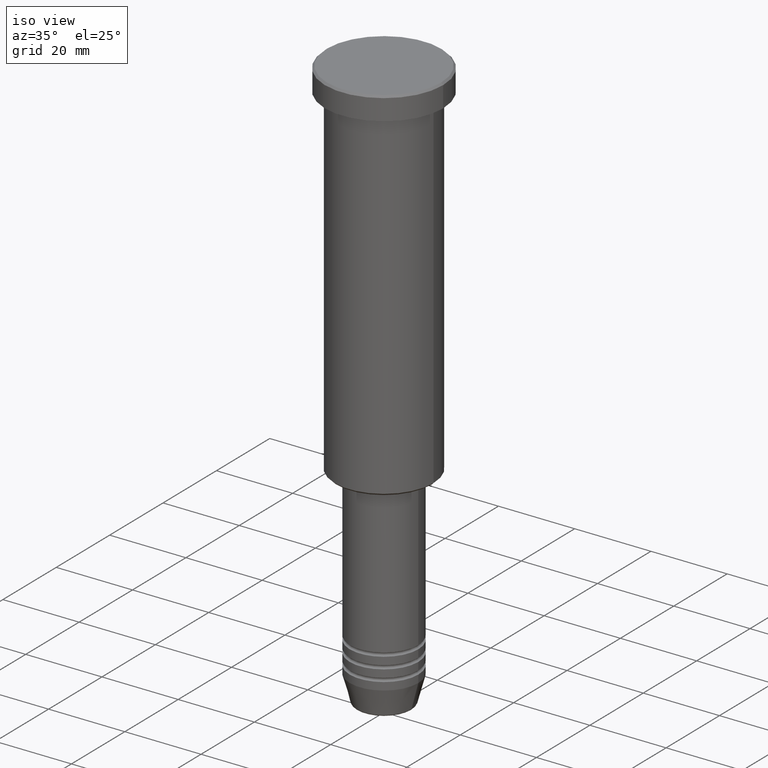
[diagram: clean part render]
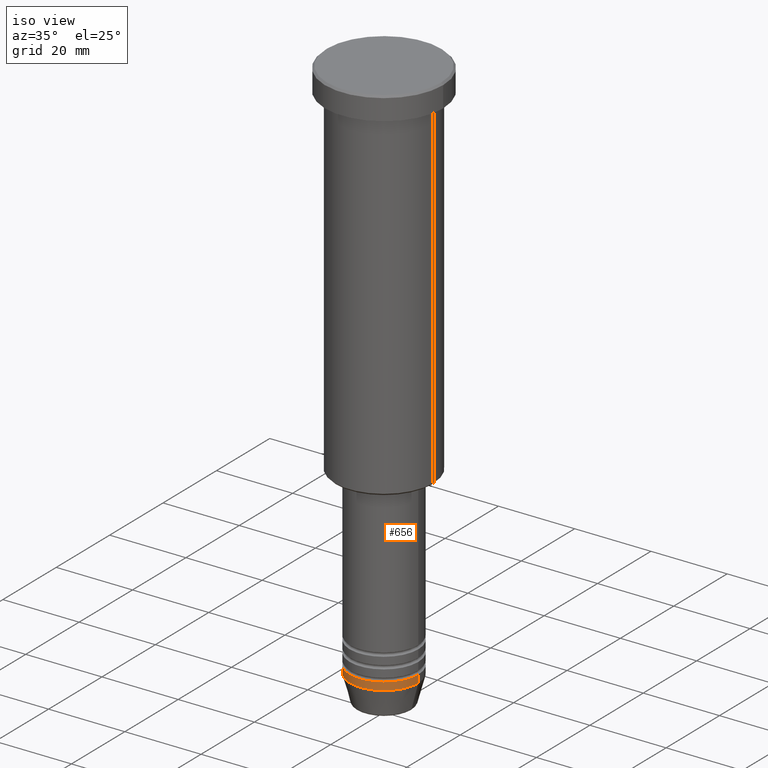
[diagram: same view with one face highlighted and labeled with its STEP entity id]
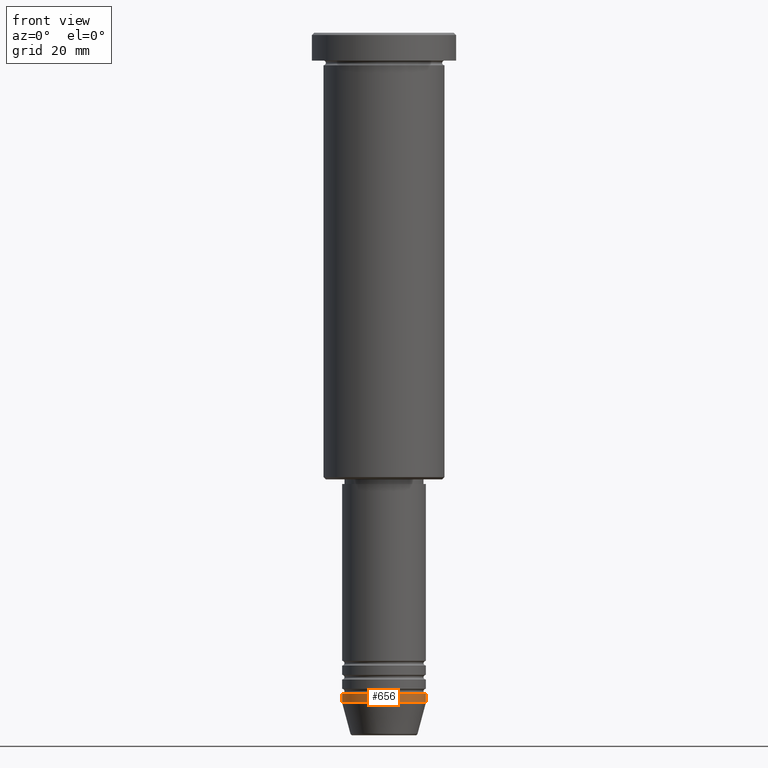
[diagram: same view with one face highlighted and labeled with its STEP entity id]
A machine part, iso view. The second image highlights one B-rep face of the part: STEP entity #656.
A second angle (front view) of the same face is appended — the face is thin or edge-on in the first view.
In plain terms, the highlighted cylindrical surface (partial cylindrical patch) has radius 9 mm, axis along (-0, -0, 1).
Its self-contained STEP definition (entity closure, byte-faithful):
#41 = EDGE_CURVE ( 'NONE', #159, #84, #868, .T. ) ;
#65 = AXIS2_PLACEMENT_3D ( 'NONE', #216, #776, #849 ) ;
#80 = DIRECTION ( 'NONE',  ( 1.000000000000000000, 0.000000000000000000, 0.000000000000000000 ) ) ;
#84 = VERTEX_POINT ( 'NONE', #919 ) ;
#98 = DIRECTION ( 'NONE',  ( -0.000000000000000000, -0.000000000000000000, 1.000000000000000000 ) ) ;
#118 = CARTESIAN_POINT ( 'NONE',  ( 9.000000000000000000, 0.000000000000000000, -144.0000000000000284 ) ) ;
#159 = VERTEX_POINT ( 'NONE', #307 ) ;
#166 = EDGE_CURVE ( 'NONE', #880, #246, #536, .T. ) ;
#216 = CARTESIAN_POINT ( 'NONE',  ( 0.000000000000000000, 0.000000000000000000, -144.0000000000000284 ) ) ;
#232 = DIRECTION ( 'NONE',  ( -0.000000000000000000, -0.000000000000000000, 1.000000000000000000 ) ) ;
#246 = VERTEX_POINT ( 'NONE', #118 ) ;
#282 = LINE ( 'NONE', #654, #397 ) ;
#307 = CARTESIAN_POINT ( 'NONE',  ( -9.000000000000000000, 1.102182119232617714E-15, -142.0000000000000284 ) ) ;
#397 = VECTOR ( 'NONE', #98, 1000.000000000000000 ) ;
#407 = CYLINDRICAL_SURFACE ( 'NONE', #753, 9.000000000000000000 ) ;
#514 = DIRECTION ( 'NONE',  ( 1.000000000000000000, 0.000000000000000000, 0.000000000000000000 ) ) ;
#527 = ORIENTED_EDGE ( 'NONE', *, *, #582, .F. ) ;
#531 = LINE ( 'NONE', #1053, #826 ) ;
#536 = CIRCLE ( 'NONE', #65, 9.000000000000000000 ) ;
#554 = DIRECTION ( 'NONE',  ( -0.000000000000000000, -0.000000000000000000, 1.000000000000000000 ) ) ;
#563 = CARTESIAN_POINT ( 'NONE',  ( 0.000000000000000000, 0.000000000000000000, -142.0000000000000284 ) ) ;
#582 = EDGE_CURVE ( 'NONE', #880, #159, #282, .T. ) ;
#605 = ORIENTED_EDGE ( 'NONE', *, *, #41, .F. ) ;
#654 = CARTESIAN_POINT ( 'NONE',  ( -9.000000000000000000, 1.102182119232617714E-15, 0.000000000000000000 ) ) ;
#656 = ADVANCED_FACE ( 'NONE', ( #840 ), #407, .T. ) ;
#699 = ORIENTED_EDGE ( 'NONE', *, *, #166, .T. ) ;
#703 = CARTESIAN_POINT ( 'NONE',  ( 0.000000000000000000, 0.000000000000000000, 0.000000000000000000 ) ) ;
#753 = AXIS2_PLACEMENT_3D ( 'NONE', #703, #232, #514 ) ;
#765 = EDGE_CURVE ( 'NONE', #246, #84, #531, .T. ) ;
#776 = DIRECTION ( 'NONE',  ( -0.000000000000000000, -0.000000000000000000, 1.000000000000000000 ) ) ;
#826 = VECTOR ( 'NONE', #1073, 1000.000000000000000 ) ;
#840 = FACE_OUTER_BOUND ( 'NONE', #1108, .T. ) ;
#849 = DIRECTION ( 'NONE',  ( 1.000000000000000000, 0.000000000000000000, 0.000000000000000000 ) ) ;
#868 = CIRCLE ( 'NONE', #1165, 9.000000000000000000 ) ;
#880 = VERTEX_POINT ( 'NONE', #1139 ) ;
#919 = CARTESIAN_POINT ( 'NONE',  ( 9.000000000000000000, 0.000000000000000000, -142.0000000000000284 ) ) ;
#1015 = ORIENTED_EDGE ( 'NONE', *, *, #765, .T. ) ;
#1053 = CARTESIAN_POINT ( 'NONE',  ( 9.000000000000000000, 0.000000000000000000, 0.000000000000000000 ) ) ;
#1073 = DIRECTION ( 'NONE',  ( -0.000000000000000000, -0.000000000000000000, 1.000000000000000000 ) ) ;
#1108 = EDGE_LOOP ( 'NONE', ( #527, #699, #1015, #605 ) ) ;
#1139 = CARTESIAN_POINT ( 'NONE',  ( -9.000000000000000000, 1.102182119232617714E-15, -144.0000000000000284 ) ) ;
#1165 = AXIS2_PLACEMENT_3D ( 'NONE', #563, #554, #80 ) ;